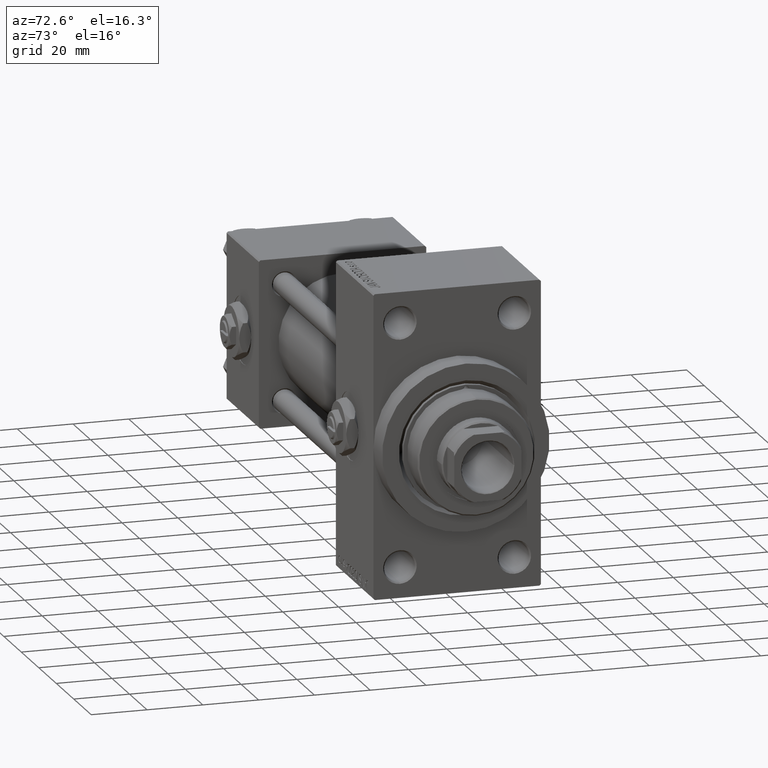
[diagram: clean part render]
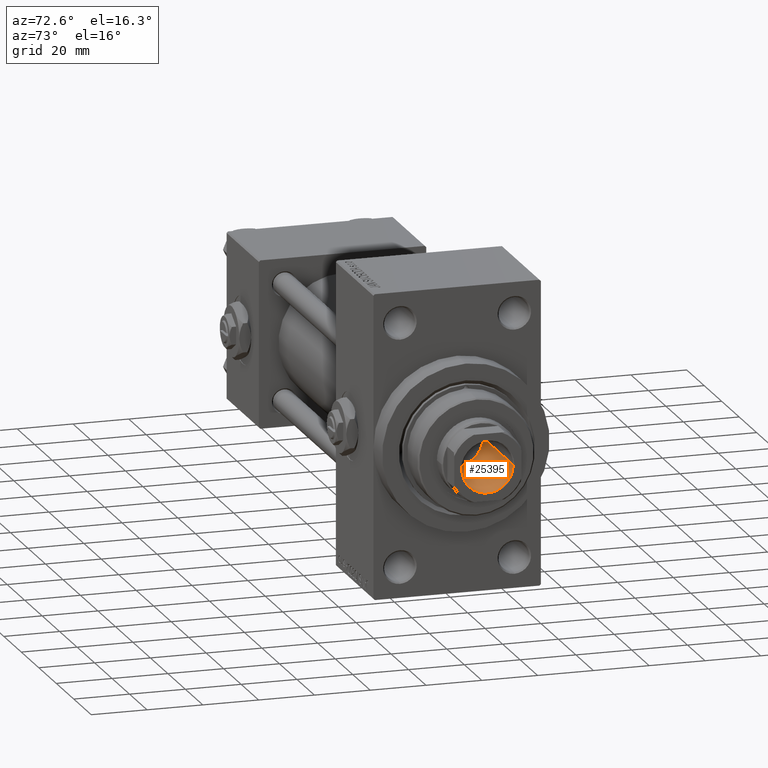
[diagram: same view with one face highlighted and labeled with its STEP entity id]
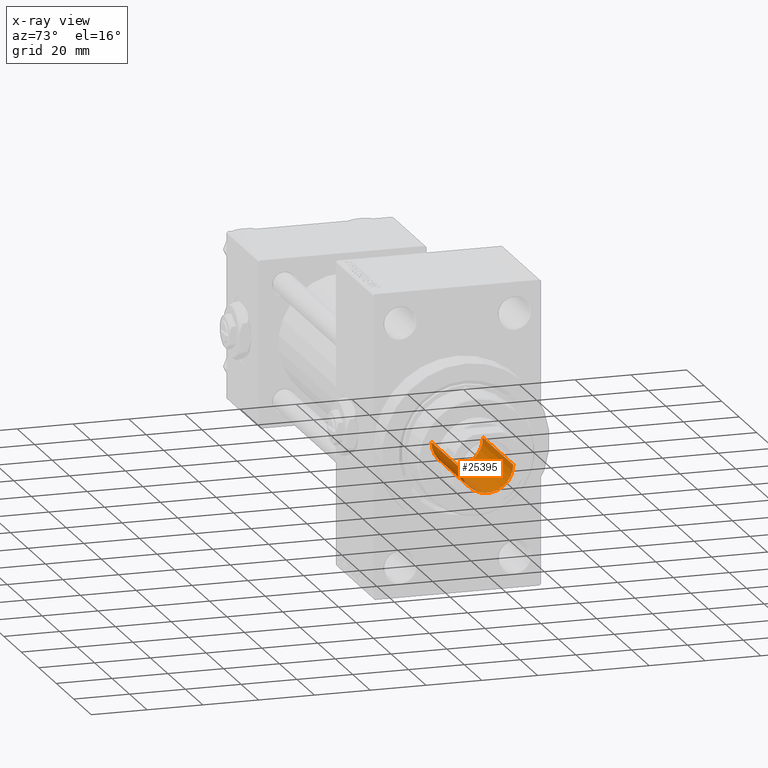
[diagram: x-ray of the same camera — body ghosted, the highlighted face saturated]
A machine part, auxiliary view. The second image highlights one B-rep face of the part: STEP entity #25395.
The next image is the same camera in x-ray: the body ghosted, the highlighted face saturated — about 1% of this face is hidden behind the body in this view.
In plain terms, the highlighted cylindrical surface (edge-blend (fillet) strip) has radius 9.25 mm, axis along (1, 0, 0).
Its self-contained STEP definition (entity closure, byte-faithful):
#1123 = ORIENTED_EDGE ( 'NONE', *, *, #32515, .F. ) ;
#2252 = AXIS2_PLACEMENT_3D ( 'NONE', #32591, #21048, #40367 ) ;
#8419 = CYLINDRICAL_SURFACE ( 'NONE', #27623, 9.249999999999994671 ) ;
#9690 = EDGE_LOOP ( 'NONE', ( #1123, #49614, #13757, #31785 ) ) ;
#11452 = DIRECTION ( 'NONE',  ( -0.000000000000000000, -0.000000000000000000, 1.000000000000000000 ) ) ;
#13584 = EDGE_CURVE ( 'NONE', #44599, #25780, #38271, .T. ) ;
#13757 = ORIENTED_EDGE ( 'NONE', *, *, #48766, .T. ) ;
#14691 = CARTESIAN_POINT ( 'NONE',  ( -9.249999999999994671, 1.132798289211300909E-15, 166.0000000000000000 ) ) ;
#15140 = DIRECTION ( 'NONE',  ( -0.000000000000000000, -0.000000000000000000, 1.000000000000000000 ) ) ;
#16226 = VECTOR ( 'NONE', #15140, 1000.000000000000000 ) ;
#17132 = CARTESIAN_POINT ( 'NONE',  ( 9.249999999999992895, 0.000000000000000000, 131.0000000000000000 ) ) ;
#17912 = CARTESIAN_POINT ( 'NONE',  ( 9.249999999999994671, 0.000000000000000000, 166.0000000000000000 ) ) ;
#18415 = LINE ( 'NONE', #17912, #16226 ) ;
#19257 = VERTEX_POINT ( 'NONE', #17132 ) ;
#20539 = CARTESIAN_POINT ( 'NONE',  ( -9.249999999999992895, 1.132798289211300712E-15, 131.0000000000000000 ) ) ;
#21048 = DIRECTION ( 'NONE',  ( 0.000000000000000000, 0.000000000000000000, 1.000000000000000000 ) ) ;
#22261 = VERTEX_POINT ( 'NONE', #20539 ) ;
#22360 = DIRECTION ( 'NONE',  ( 1.000000000000000000, 0.000000000000000000, 0.000000000000000000 ) ) ;
#25395 = ADVANCED_FACE ( 'NONE', ( #31247 ), #8419, .F. ) ;
#25780 = VERTEX_POINT ( 'NONE', #42245 ) ;
#25960 = EDGE_CURVE ( 'NONE', #19257, #22261, #30838, .T. ) ;
#26990 = CARTESIAN_POINT ( 'NONE',  ( 0.000000000000000000, 0.000000000000000000, 166.0000000000000000 ) ) ;
#27623 = AXIS2_PLACEMENT_3D ( 'NONE', #26990, #11452, #46300 ) ;
#29989 = DIRECTION ( 'NONE',  ( -0.000000000000000000, -0.000000000000000000, 1.000000000000000000 ) ) ;
#30838 = CIRCLE ( 'NONE', #37253, 9.249999999999992895 ) ;
#31247 = FACE_OUTER_BOUND ( 'NONE', #9690, .T. ) ;
#31785 = ORIENTED_EDGE ( 'NONE', *, *, #13584, .T. ) ;
#32515 = EDGE_CURVE ( 'NONE', #22261, #25780, #40792, .T. ) ;
#32591 = CARTESIAN_POINT ( 'NONE',  ( 0.000000000000000000, 0.000000000000000000, 165.7000000000000171 ) ) ;
#37253 = AXIS2_PLACEMENT_3D ( 'NONE', #42608, #38840, #22360 ) ;
#38271 = CIRCLE ( 'NONE', #2252, 9.249999999999994671 ) ;
#38840 = DIRECTION ( 'NONE',  ( -0.000000000000000000, -0.000000000000000000, 1.000000000000000000 ) ) ;
#40367 = DIRECTION ( 'NONE',  ( 1.000000000000000000, 0.000000000000000000, 0.000000000000000000 ) ) ;
#40792 = LINE ( 'NONE', #14691, #41415 ) ;
#41415 = VECTOR ( 'NONE', #29989, 1000.000000000000000 ) ;
#42245 = CARTESIAN_POINT ( 'NONE',  ( -9.249999999999994671, 1.132798289211300909E-15, 165.7000000000000171 ) ) ;
#42608 = CARTESIAN_POINT ( 'NONE',  ( 0.000000000000000000, 0.000000000000000000, 131.0000000000000000 ) ) ;
#44599 = VERTEX_POINT ( 'NONE', #48631 ) ;
#46300 = DIRECTION ( 'NONE',  ( 1.000000000000000000, 0.000000000000000000, 0.000000000000000000 ) ) ;
#48631 = CARTESIAN_POINT ( 'NONE',  ( 9.249999999999994671, 0.000000000000000000, 165.7000000000000171 ) ) ;
#48766 = EDGE_CURVE ( 'NONE', #19257, #44599, #18415, .T. ) ;
#49614 = ORIENTED_EDGE ( 'NONE', *, *, #25960, .F. ) ;